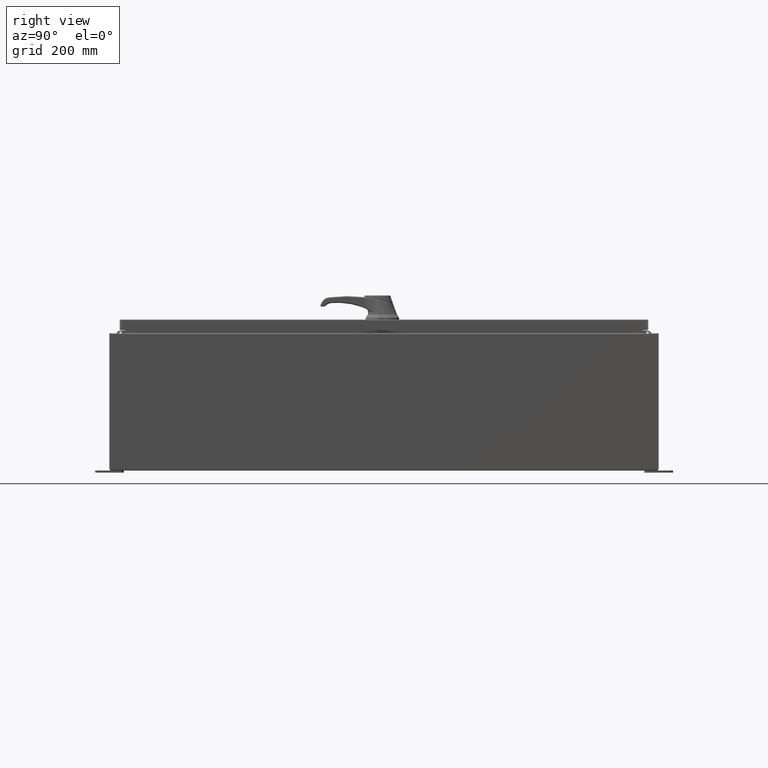
[diagram: clean part render]
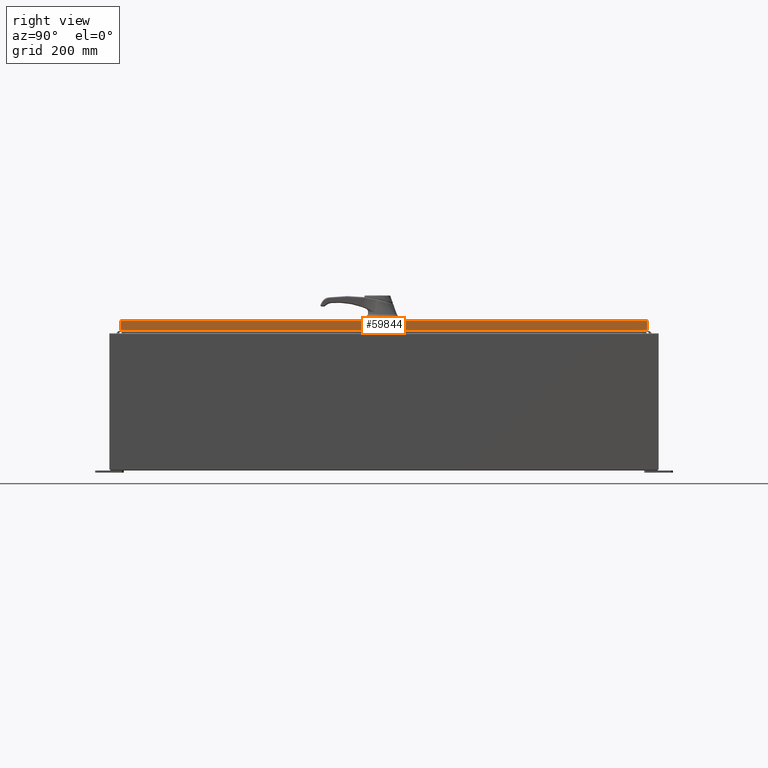
[diagram: same view with one face highlighted and labeled with its STEP entity id]
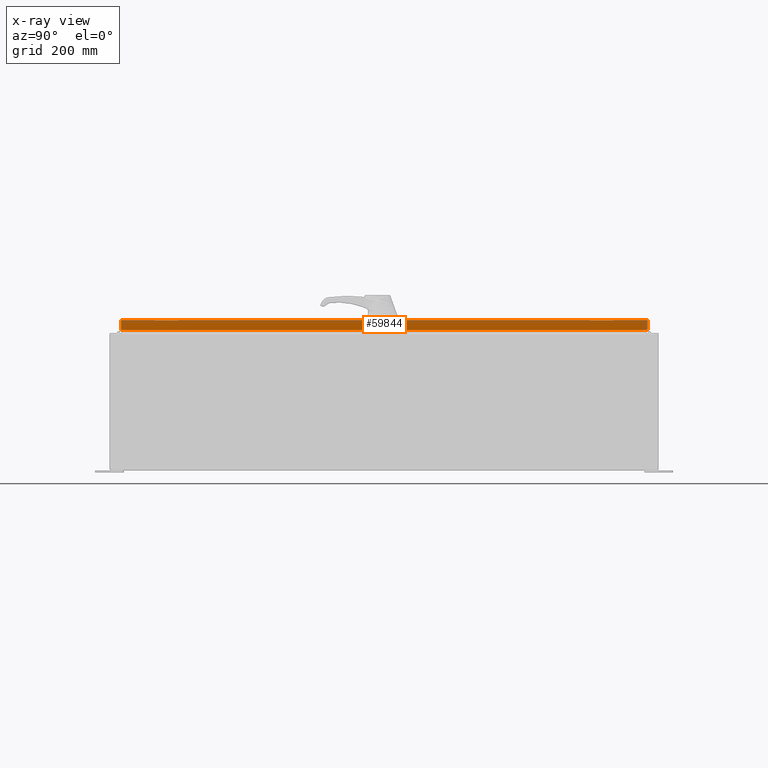
[diagram: x-ray of the same camera — body ghosted, the highlighted face saturated]
A machine part, right view. The second image highlights one B-rep face of the part: STEP entity #59844.
The next image is the same camera in x-ray: the body ghosted, the highlighted face saturated — about 0% of this face is hidden behind the body in this view.
In plain terms, the highlighted planar face has unit normal (1, 0, 0).
Its self-contained STEP definition (entity closure, byte-faithful):
#564 = CARTESIAN_POINT ( 'NONE',  ( 17.07800000000000300, -23.09400000000000100, -0.9376999999999997600 ) ) ;
#1622 = VERTEX_POINT ( 'NONE', #110090 ) ;
#2030 = AXIS2_PLACEMENT_3D ( 'NONE', #116673, #14518, #86190 ) ;
#3748 = PLANE ( 'NONE',  #2030 ) ;
#5338 = DIRECTION ( 'NONE',  ( -2.532419924601866100E-015, -6.982962677686265900E-015, 1.000000000000000000 ) ) ;
#8548 = DIRECTION ( 'NONE',  ( -2.532419924601866100E-015, -6.982962677686265900E-015, 1.000000000000000000 ) ) ;
#11392 = LINE ( 'NONE', #59625, #62679 ) ;
#13987 = VECTOR ( 'NONE', #5338, 39.37007874015748100 ) ;
#14518 = DIRECTION ( 'NONE',  ( 1.000000000000000000, 0.0000000000000000000, 2.532419924601866100E-015 ) ) ;
#17199 = LINE ( 'NONE', #107899, #13987 ) ;
#19525 = EDGE_CURVE ( 'NONE', #55406, #27692, #40206, .T. ) ;
#21038 = ORIENTED_EDGE ( 'NONE', *, *, #21883, .T. ) ;
#21883 = EDGE_CURVE ( 'NONE', #1622, #92986, #115074, .T. ) ;
#27692 = VERTEX_POINT ( 'NONE', #29611 ) ;
#28976 = ORIENTED_EDGE ( 'NONE', *, *, #119290, .F. ) ;
#29611 = CARTESIAN_POINT ( 'NONE',  ( 17.07800000000000300, -23.00515786437626200, -0.9376999999999997600 ) ) ;
#40206 = LINE ( 'NONE', #564, #121954 ) ;
#42061 = ORIENTED_EDGE ( 'NONE', *, *, #19525, .F. ) ;
#44898 = CARTESIAN_POINT ( 'NONE',  ( 17.07799999999999900, 0.0000000000000000000, -0.08770000000000008300 ) ) ;
#54996 = FACE_OUTER_BOUND ( 'NONE', #117832, .T. ) ;
#55196 = DIRECTION ( 'NONE',  ( 0.0000000000000000000, -1.000000000000000000, 0.0000000000000000000 ) ) ;
#55314 = CARTESIAN_POINT ( 'NONE',  ( 17.07800000000000300, 23.00515786437628000, -0.9376999999999997600 ) ) ;
#55406 = VERTEX_POINT ( 'NONE', #55314 ) ;
#59625 = CARTESIAN_POINT ( 'NONE',  ( 17.07799999999999900, -23.00515786437626900, -0.07469999999999980800 ) ) ;
#59844 = ADVANCED_FACE ( 'NONE', ( #54996 ), #3748, .T. ) ;
#62679 = VECTOR ( 'NONE', #8548, 39.37007874015748100 ) ;
#80295 = ORIENTED_EDGE ( 'NONE', *, *, #94569, .T. ) ;
#81438 = CARTESIAN_POINT ( 'NONE',  ( 17.07799999999999900, -23.00515786437626900, -0.08770000000000008300 ) ) ;
#86190 = DIRECTION ( 'NONE',  ( 2.532419924601866100E-015, 0.0000000000000000000, -1.000000000000000000 ) ) ;
#92986 = VERTEX_POINT ( 'NONE', #81438 ) ;
#94569 = EDGE_CURVE ( 'NONE', #55406, #1622, #17199, .T. ) ;
#107899 = CARTESIAN_POINT ( 'NONE',  ( 17.07799999999999900, 23.00515786437627600, 2.041536398895824600E-013 ) ) ;
#110090 = CARTESIAN_POINT ( 'NONE',  ( 17.07799999999999900, 23.00515786437627200, -0.08770000000000008300 ) ) ;
#115074 = LINE ( 'NONE', #44898, #118258 ) ;
#116673 = CARTESIAN_POINT ( 'NONE',  ( 17.07799999999999900, 0.0000000000000000000, 4.350948112836224800E-014 ) ) ;
#117832 = EDGE_LOOP ( 'NONE', ( #28976, #42061, #80295, #21038 ) ) ;
#118258 = VECTOR ( 'NONE', #55196, 39.37007874015748100 ) ;
#119290 = EDGE_CURVE ( 'NONE', #27692, #92986, #11392, .T. ) ;
#121954 = VECTOR ( 'NONE', #123339, 39.37007874015748100 ) ;
#123339 = DIRECTION ( 'NONE',  ( 0.0000000000000000000, -1.000000000000000000, 0.0000000000000000000 ) ) ;